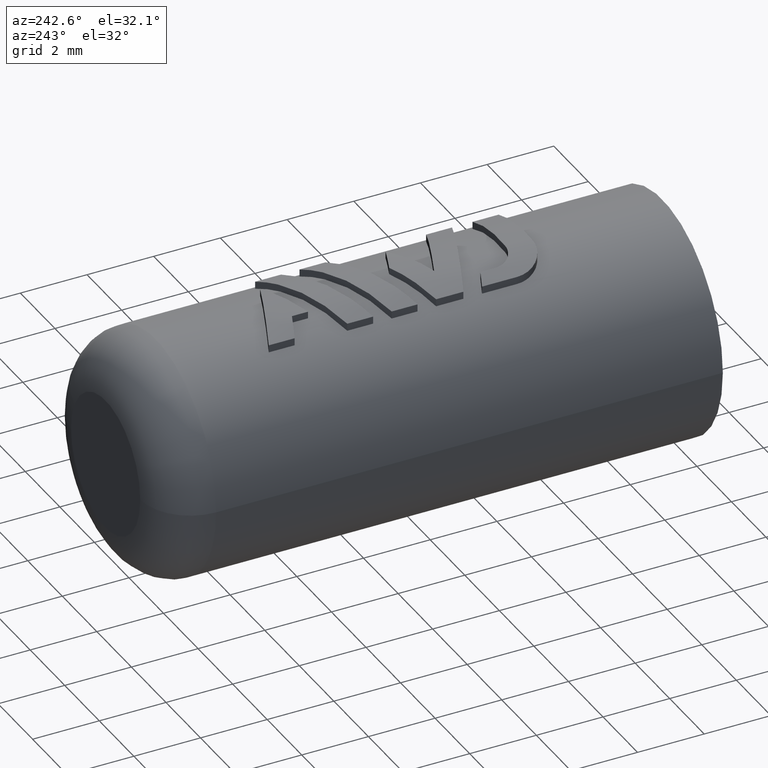
[diagram: clean part render]
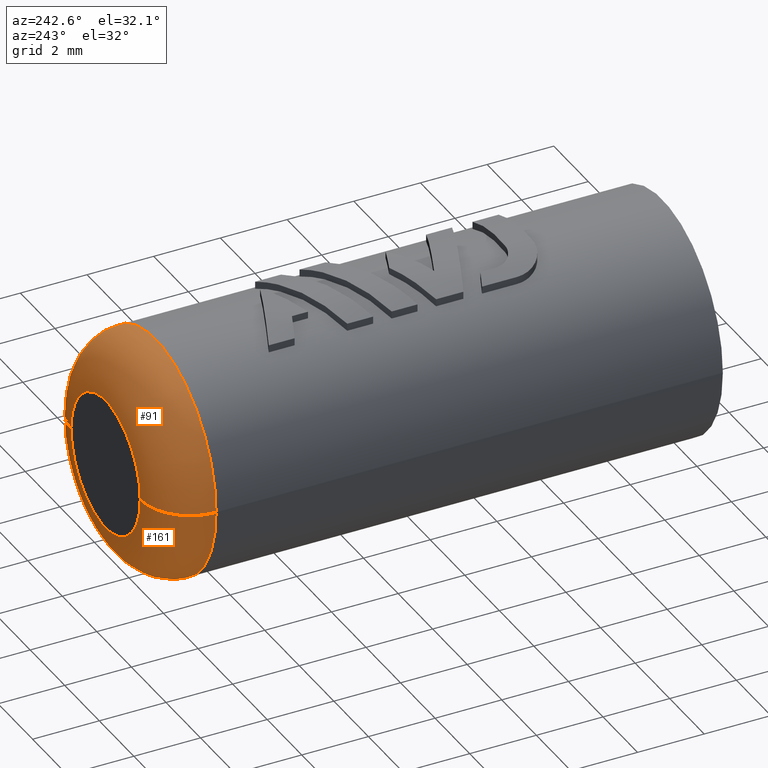
[diagram: same view with one multi-face feature highlighted, each face labeled with its STEP entity id]
A machine part, auxiliary view. The highlighted faces form ONE feature: a constant-radius fillet chain: 2 tangent blend faces with common blend radius 1.5 mm. The faces share edges in the B-rep.
Their STEP definitions:
[1] entity #161 (Torus):
#161=ADVANCED_FACE('',(#328),#329,.T.);
#328=FACE_OUTER_BOUND('',#2063,.T.);
#329=TOROIDAL_SURFACE('',#2064,2.0,1.5);
#2063=EDGE_LOOP('',(#2706,#2707,#2708,#2709));
#2064=AXIS2_PLACEMENT_3D('',#2710,#2711,#2712);
#2706=ORIENTED_EDGE('',*,*,#2768,.T.);
#2707=ORIENTED_EDGE('',*,*,#2775,.F.);
#2708=ORIENTED_EDGE('',*,*,#2770,.T.);
#2709=ORIENTED_EDGE('',*,*,#2960,.T.);
#2710=CARTESIAN_POINT('',(0.0,15.2,0.0));
#2711=DIRECTION('',(0.0,-1.0,0.0));
#2712=DIRECTION('',(1.0,0.0,-6.12323399573677E-17));
#2768=EDGE_CURVE('',#2994,#2995,#2996,.T.);
#2770=EDGE_CURVE('',#2999,#2997,#3000,.T.);
#2775=EDGE_CURVE('',#2999,#2995,#3007,.T.);
#2960=EDGE_CURVE('',#2997,#2994,#3313,.T.);
#2994=VERTEX_POINT('',#4151);
#2995=VERTEX_POINT('',#4152);
#2996=CIRCLE('',#4153,1.5);
#2997=VERTEX_POINT('',#4154);
#2999=VERTEX_POINT('',#4156);
#3000=CIRCLE('',#4157,1.5);
#3007=CIRCLE('',#4166,3.5);
#3313=CIRCLE('',#4576,2.0);
#4151=CARTESIAN_POINT('',(2.0,16.7,-1.22464679914735E-16));
#4152=CARTESIAN_POINT('',(3.5,15.2,-2.14313189850787E-16));
#4153=AXIS2_PLACEMENT_3D('',#4599,#4600,#4601);
#4154=CARTESIAN_POINT('',(-2.0,16.7,3.67394039744206E-16));
#4156=CARTESIAN_POINT('',(-3.5,15.2,-2.14313189850787E-16));
#4157=AXIS2_PLACEMENT_3D('',#4605,#4606,#4607);
#4166=AXIS2_PLACEMENT_3D('',#4616,#4617,#4618);
#4576=AXIS2_PLACEMENT_3D('',#4999,#5000,#5001);
#4599=CARTESIAN_POINT('',(2.0,15.2,-3.67394039744206E-16));
#4600=DIRECTION('',(-1.83697019872103E-16,-0.0,-1.0));
#4601=DIRECTION('',(1.0,0.0,-1.83697019872103E-16));
#4605=CARTESIAN_POINT('',(-2.0,15.2,3.67394039744206E-16));
#4606=DIRECTION('',(-1.83697019872103E-16,0.0,-1.0));
#4607=DIRECTION('',(-1.0,0.0,1.83697019872103E-16));
#4616=CARTESIAN_POINT('',(0.0,15.2,0.0));
#4617=DIRECTION('',(0.0,-1.0,0.0));
#4618=DIRECTION('',(1.0,0.0,-6.12323399573677E-17));
#4999=CARTESIAN_POINT('',(0.0,16.7,0.0));
#5000=DIRECTION('',(0.0,-1.0,0.0));
#5001=DIRECTION('',(1.0,0.0,-6.12323399573677E-17));
[2] entity #91 (Torus):
#91=ADVANCED_FACE('',(#183),#184,.T.);
#183=FACE_OUTER_BOUND('',#1918,.T.);
#184=TOROIDAL_SURFACE('',#1919,2.0,1.5);
#1918=EDGE_LOOP('',(#2120,#2121,#2122,#2123));
#1919=AXIS2_PLACEMENT_3D('',#2124,#2125,#2126);
#2120=ORIENTED_EDGE('',*,*,#2768,.F.);
#2121=ORIENTED_EDGE('',*,*,#2769,.T.);
#2122=ORIENTED_EDGE('',*,*,#2770,.F.);
#2123=ORIENTED_EDGE('',*,*,#2771,.F.);
#2124=CARTESIAN_POINT('',(0.0,15.2,0.0));
#2125=DIRECTION('',(0.0,-1.0,0.0));
#2126=DIRECTION('',(1.0,0.0,-6.12323399573677E-17));
#2768=EDGE_CURVE('',#2994,#2995,#2996,.T.);
#2769=EDGE_CURVE('',#2994,#2997,#2998,.T.);
#2770=EDGE_CURVE('',#2999,#2997,#3000,.T.);
#2771=EDGE_CURVE('',#2995,#2999,#3001,.T.);
#2994=VERTEX_POINT('',#4151);
#2995=VERTEX_POINT('',#4152);
#2996=CIRCLE('',#4153,1.5);
#2997=VERTEX_POINT('',#4154);
#2998=CIRCLE('',#4155,2.0);
#2999=VERTEX_POINT('',#4156);
#3000=CIRCLE('',#4157,1.5);
#3001=CIRCLE('',#4158,3.5);
#4151=CARTESIAN_POINT('',(2.0,16.7,-1.22464679914735E-16));
#4152=CARTESIAN_POINT('',(3.5,15.2,-2.14313189850787E-16));
#4153=AXIS2_PLACEMENT_3D('',#4599,#4600,#4601);
#4154=CARTESIAN_POINT('',(-2.0,16.7,3.67394039744206E-16));
#4155=AXIS2_PLACEMENT_3D('',#4602,#4603,#4604);
#4156=CARTESIAN_POINT('',(-3.5,15.2,-2.14313189850787E-16));
#4157=AXIS2_PLACEMENT_3D('',#4605,#4606,#4607);
#4158=AXIS2_PLACEMENT_3D('',#4608,#4609,#4610);
#4599=CARTESIAN_POINT('',(2.0,15.2,-3.67394039744206E-16));
#4600=DIRECTION('',(-1.83697019872103E-16,-0.0,-1.0));
#4601=DIRECTION('',(1.0,0.0,-1.83697019872103E-16));
#4602=CARTESIAN_POINT('',(0.0,16.7,0.0));
#4603=DIRECTION('',(0.0,-1.0,0.0));
#4604=DIRECTION('',(1.0,0.0,-6.12323399573677E-17));
#4605=CARTESIAN_POINT('',(-2.0,15.2,3.67394039744206E-16));
#4606=DIRECTION('',(-1.83697019872103E-16,0.0,-1.0));
#4607=DIRECTION('',(-1.0,0.0,1.83697019872103E-16));
#4608=CARTESIAN_POINT('',(0.0,15.2,0.0));
#4609=DIRECTION('',(0.0,-1.0,0.0));
#4610=DIRECTION('',(1.0,0.0,-6.12323399573677E-17));